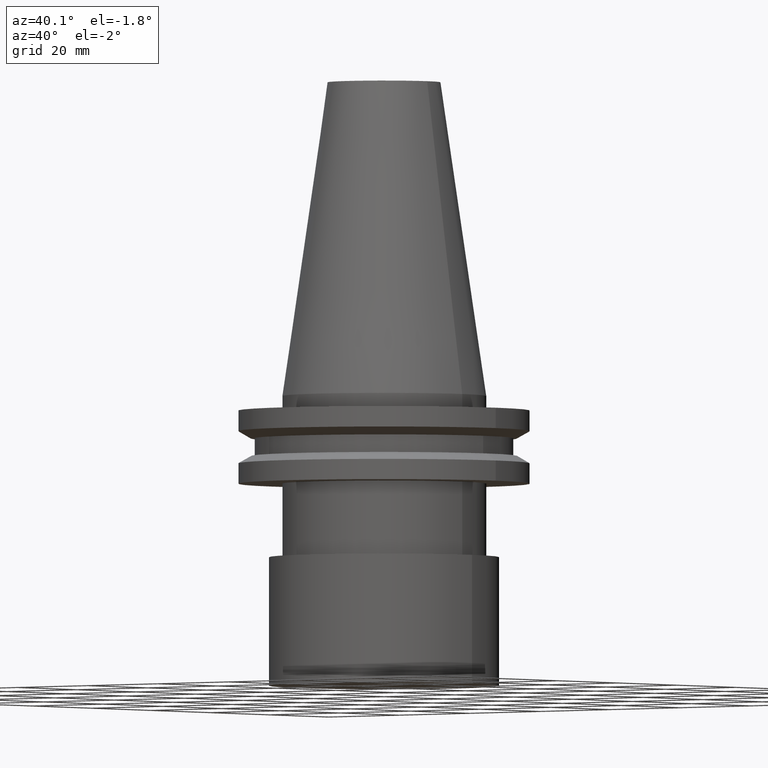
[diagram: clean part render]
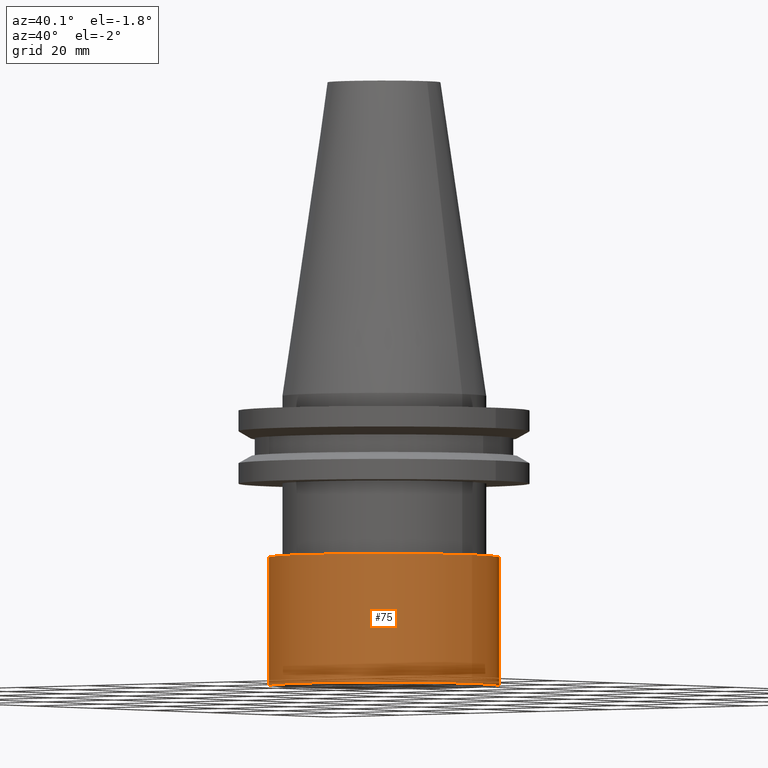
[diagram: same view with one face highlighted and labeled with its STEP entity id]
A machine part, auxiliary view. The second image highlights one B-rep face of the part: STEP entity #75.
In plain terms, the highlighted cylindrical surface (bore or boss wall) has radius 25 mm, axis along (-0, -0, 1).
Its self-contained STEP definition (entity closure, byte-faithful):
#31 = CYLINDRICAL_SURFACE ( 'NONE', #260, 25.00000000000000000 ) ;
#41 = EDGE_LOOP ( 'NONE', ( #323 ) ) ;
#51 = EDGE_CURVE ( 'NONE', #159, #159, #136, .T. ) ;
#58 = CARTESIAN_POINT ( 'NONE',  ( 25.00000000000000000, 0.000000000000000000, -35.04999999999999716 ) ) ;
#60 = FACE_OUTER_BOUND ( 'NONE', #229, .T. ) ;
#66 = CARTESIAN_POINT ( 'NONE',  ( 0.000000000000000000, 0.000000000000000000, -35.04999999999999716 ) ) ;
#75 = ADVANCED_FACE ( 'NONE', ( #60, #119 ), #31, .T. ) ;
#79 = DIRECTION ( 'NONE',  ( -0.000000000000000000, -0.000000000000000000, 1.000000000000000000 ) ) ;
#93 = DIRECTION ( 'NONE',  ( -0.000000000000000000, -0.000000000000000000, 1.000000000000000000 ) ) ;
#119 = FACE_OUTER_BOUND ( 'NONE', #41, .T. ) ;
#136 = CIRCLE ( 'NONE', #363, 25.00000000000000000 ) ;
#159 = VERTEX_POINT ( 'NONE', #58 ) ;
#162 = DIRECTION ( 'NONE',  ( 1.000000000000000000, 0.000000000000000000, 0.000000000000000000 ) ) ;
#169 = VERTEX_POINT ( 'NONE', #197 ) ;
#182 = DIRECTION ( 'NONE',  ( -0.000000000000000000, -0.000000000000000000, 1.000000000000000000 ) ) ;
#197 = CARTESIAN_POINT ( 'NONE',  ( 25.00000000000000000, 0.000000000000000000, -63.00000000000000000 ) ) ;
#229 = EDGE_LOOP ( 'NONE', ( #262 ) ) ;
#235 = EDGE_CURVE ( 'NONE', #169, #169, #251, .T. ) ;
#250 = DIRECTION ( 'NONE',  ( 1.000000000000000000, 0.000000000000000000, 0.000000000000000000 ) ) ;
#251 = CIRCLE ( 'NONE', #268, 25.00000000000000000 ) ;
#260 = AXIS2_PLACEMENT_3D ( 'NONE', #371, #93, #162 ) ;
#262 = ORIENTED_EDGE ( 'NONE', *, *, #51, .F. ) ;
#268 = AXIS2_PLACEMENT_3D ( 'NONE', #389, #79, #325 ) ;
#323 = ORIENTED_EDGE ( 'NONE', *, *, #235, .T. ) ;
#325 = DIRECTION ( 'NONE',  ( 1.000000000000000000, 0.000000000000000000, 0.000000000000000000 ) ) ;
#363 = AXIS2_PLACEMENT_3D ( 'NONE', #66, #182, #250 ) ;
#371 = CARTESIAN_POINT ( 'NONE',  ( 0.000000000000000000, 0.000000000000000000, 0.000000000000000000 ) ) ;
#389 = CARTESIAN_POINT ( 'NONE',  ( 0.000000000000000000, 0.000000000000000000, -63.00000000000000000 ) ) ;